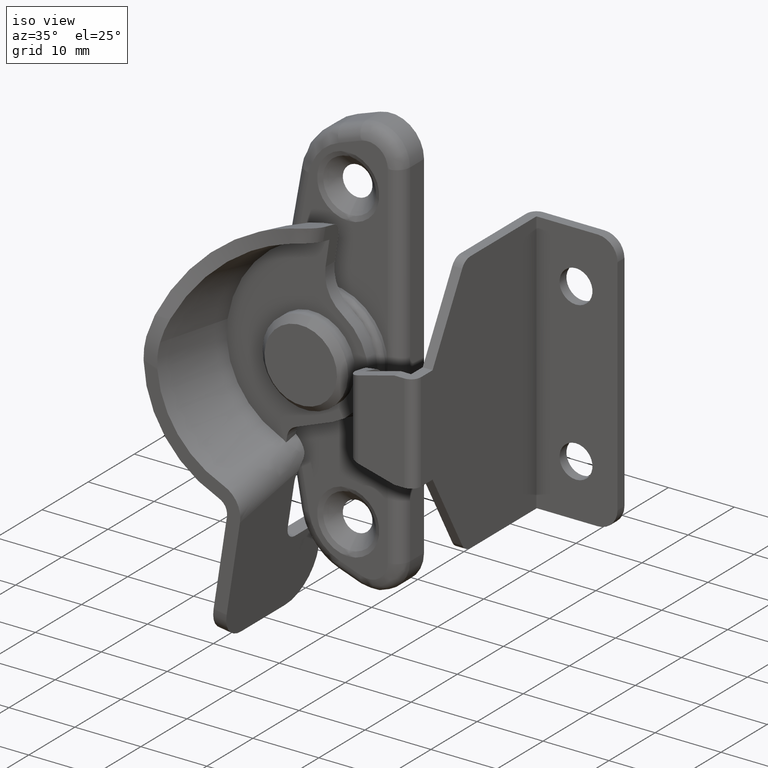
[diagram: clean part render]
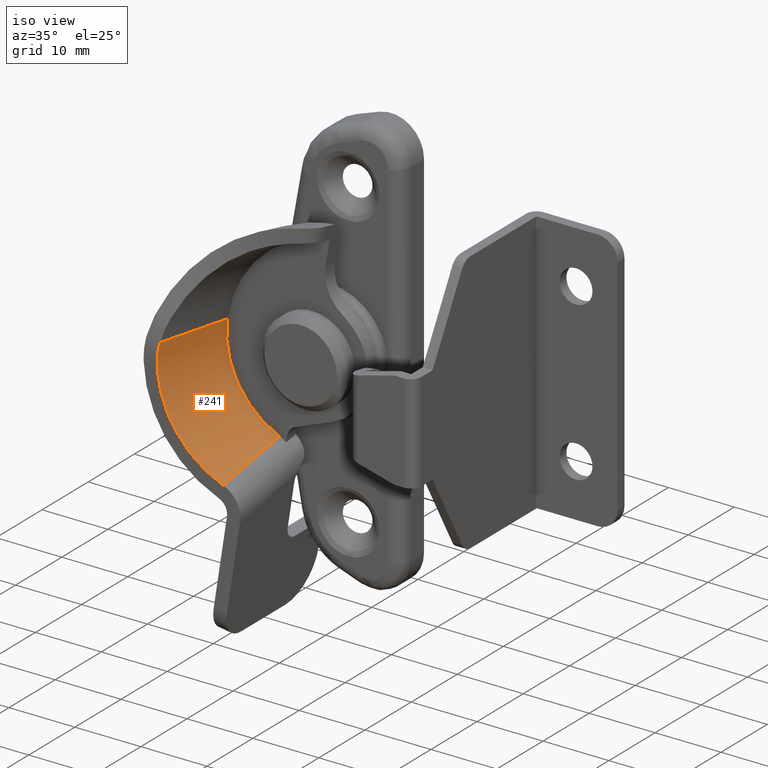
[diagram: same view with one face highlighted and labeled with its STEP entity id]
A machine part, iso view. The second image highlights one B-rep face of the part: STEP entity #241.
In plain terms, the highlighted face is a freeform B-spline surface patch.
Its self-contained STEP definition (entity closure, byte-faithful):
#241=ADVANCED_FACE('',(#956),#955,.F.);
#955=( BOUNDED_SURFACE() B_SPLINE_SURFACE( 2,1,((#2995,#2996),(#2997,#2998),(#2999,#3000)), .UNSPECIFIED.,.F.,.F.,.F.) B_SPLINE_SURFACE_WITH_KNOTS((3,3),(2,2),(0.00000000000E+00,1.00000000000E+00),(0.00000000000E+00,1.00000000000E+00), .UNSPECIFIED. ) GEOMETRIC_REPRESENTATION_ITEM() RATIONAL_B_SPLINE_SURFACE(((1.00000000000E+00,1.00000000000E+00),(7.74099459557E-01,7.74099459557E-01),(1.00000000000E+00,1.00000000000E+00))) REPRESENTATION_ITEM('') SURFACE() );
#956=FACE_OUTER_BOUND('',#3001,.T.);
#2995=CARTESIAN_POINT('',(-3.48485912869E+01,8.10623926526E-05,1.97819204453E+00));
#2996=CARTESIAN_POINT('',(-3.73196649106E+01,-1.15007908301E+01,2.35864294960E+00));
#2997=CARTESIAN_POINT('',(-3.64663706960E+01,8.10623926526E-05,-8.52947655021E+00));
#2998=CARTESIAN_POINT('',(-3.92485797538E+01,-1.15007908301E+01,-1.01698870868E+01));
#2999=CARTESIAN_POINT('',(-2.64887745646E+01,8.10623926526E-05,-1.22004280552E+01));
#3000=CARTESIAN_POINT('',(-2.73520670596E+01,-1.15007908301E+01,-1.45468452843E+01));
#3001=EDGE_LOOP('',(#4772,#4773,#4774,#4775,#4776));
#4772=ORIENTED_EDGE('',*,*,#5626,.F.);
#4773=ORIENTED_EDGE('',*,*,#5602,.F.);
#4774=ORIENTED_EDGE('',*,*,#5760,.T.);
#4775=ORIENTED_EDGE('',*,*,#5642,.F.);
#4776=ORIENTED_EDGE('',*,*,#5580,.F.);
#5580=EDGE_CURVE('',#6182,#6189,#6190,.T.);
#5602=EDGE_CURVE('',#6333,#6340,#6341,.T.);
#5626=EDGE_CURVE('',#6340,#6182,#6501,.T.);
#5642=EDGE_CURVE('',#6189,#6607,#6608,.T.);
#5760=EDGE_CURVE('',#6333,#6607,#7400,.T.);
#6182=VERTEX_POINT('',#9818);
#6189=VERTEX_POINT('',#9823);
#6190=(BOUNDED_CURVE() B_SPLINE_CURVE(3,(#9824,#9825,#9826,#9827),.UNSPECIFIED.,.F.,.F.) B_SPLINE_CURVE_WITH_KNOTS((4,4),(0.00000000000E+00,3.60695556621E-03),.UNSPECIFIED.) CURVE() GEOMETRIC_REPRESENTATION_ITEM() RATIONAL_B_SPLINE_CURVE((1.00000000000E+00,1.00000000000E+00,1.00000000000E+00,1.00000000000E+00)) REPRESENTATION_ITEM('') );
#6333=VERTEX_POINT('',#9957);
#6340=VERTEX_POINT('',#9962);
#6341=(BOUNDED_CURVE() B_SPLINE_CURVE(3,(#9963,#9964,#9965,#9966,#9967,#9968,#9969),.UNSPECIFIED.,.F.,.F.) B_SPLINE_CURVE_WITH_KNOTS((4,3,4),(3.54797417542E-19,4.96071984637E-03,1.17769613605E-02),.UNSPECIFIED.) CURVE() GEOMETRIC_REPRESENTATION_ITEM() RATIONAL_B_SPLINE_CURVE((1.00000000000E+00,1.00000000000E+00,1.00000000000E+00,1.00000000000E+00,1.00000000000E+00,1.00000000000E+00,1.00000000000E+00)) REPRESENTATION_ITEM('') );
#6501=CIRCLE('',#10096,1.55000000000E+01);
#6607=VERTEX_POINT('',#10161);
#6608=LINE('',#10162,#10163);
#7400=CIRCLE('',#10669,1.30000000000E+01);
#9818=CARTESIAN_POINT('',(-3.74499659379E+01,-1.15000000000E+01,-1.24440850080E+00));
#9823=CARTESIAN_POINT('',(-3.72555607297E+01,-1.11996284088E+01,2.34475741607E+00));
#9824=CARTESIAN_POINT('',(-3.74499659379E+01,-1.15000000000E+01,-1.24440850080E+00));
#9825=CARTESIAN_POINT('',(-3.75477124018E+01,-1.15000000000E+01,-3.08363204956E-02));
#9826=CARTESIAN_POINT('',(-3.74825558680E+01,-1.14081182341E+01,1.16622286910E+00));
#9827=CARTESIAN_POINT('',(-3.72555607297E+01,-1.11996284088E+01,2.34475741607E+00));
#9957=CARTESIAN_POINT('',(-2.69584801494E+01,0.00000000000E+00,-1.20172157594E+01));
#9962=CARTESIAN_POINT('',(-2.74614947726E+01,-1.15000000000E+01,-1.45059324019E+01));
#9963=CARTESIAN_POINT('',(-2.69584801494E+01,3.72125711238E-16,-1.20172157594E+01));
#9964=CARTESIAN_POINT('',(-2.70316198231E+01,-1.61455670548E+00,-1.23667323288E+01));
#9965=CARTESIAN_POINT('',(-2.71035511930E+01,-3.22917388138E+00,-1.27162238581E+01));
#9966=CARTESIAN_POINT('',(-2.71744721004E+01,-4.84384332534E+00,-1.30656768749E+01));
#9967=CARTESIAN_POINT('',(-2.72719204552E+01,-7.06246808253E+00,-1.35458402406E+01));
#9968=CARTESIAN_POINT('',(-2.73674642780E+01,-9.28119272681E+00,-1.40259309402E+01));
#9969=CARTESIAN_POINT('',(-2.74614947726E+01,-1.15000000000E+01,-1.45059324019E+01));
#10093=CARTESIAN_POINT('',(-2.20000000000E+01,-1.15000000000E+01,0.00000000000E+00));
#10094=DIRECTION('',(0.00000000000E+00,1.00000000000E+00,0.00000000000E+00));
#10095=DIRECTION('',(1.51914655832E-01,-0.00000000000E+00,9.88393614580E-01));
#10096=AXIS2_PLACEMENT_3D('',#10093,#10094,#10095);
#10161=CARTESIAN_POINT('',(-3.48491169895E+01,1.38777878078E-14,1.97489052589E+00));
#10162=CARTESIAN_POINT('',(-3.72555607297E+01,-1.11996284088E+01,2.34475741607E+00));
#10163=VECTOR('',#10164,1.14612150091E+01);
#10164=DIRECTION('',(2.09964104004E-01,9.77176363923E-01,-3.22711763071E-02));
#10666=CARTESIAN_POINT('',(-2.20000000000E+01,0.00000000000E+00,0.00000000000E+00));
#10667=DIRECTION('',(0.00000000000E+00,1.00000000000E+00,0.00000000000E+00));
#10668=DIRECTION('',(1.51914655832E-01,-0.00000000000E+00,9.88393614580E-01));
#10669=AXIS2_PLACEMENT_3D('',#10666,#10667,#10668);